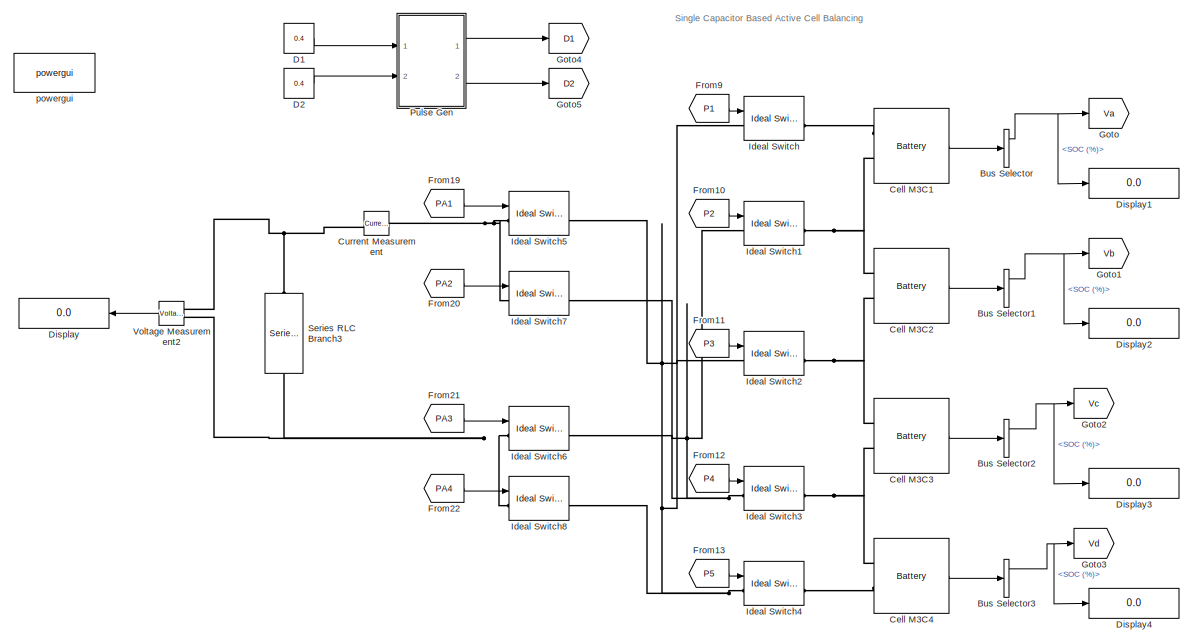
[diagram: root canvas - part 1/2, center side, full height]
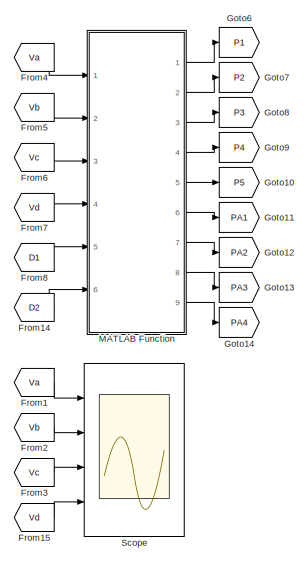
[diagram: root canvas - part 2/2, right side, full height]
MODEL slx_6ee19fbe0570
KIND model
CONFIG AbsTol = auto
CONFIG EnableMultiTasking = off
CONFIG FixedStep = auto
CONFIG MaxStep = auto
CONFIG MinStep = auto
CONFIG RelTol = 1e-3
CONFIG SampleTimeConstraint = Unconstrained
CONFIG SolverName = VariableStepAuto
CONFIG StartTime = 0.0
CONFIG StopTime = inf
BLOCK [BusSelector] Bus Selector
  OutputSignals = SOC (%),Voltage (V),Current (A)
  Ports = [1, 3]
BLOCK [BusSelector] Bus Selector1
  OutputSignals = SOC (%),Voltage (V),Current (A)
  Ports = [1, 3]
BLOCK [BusSelector] Bus Selector2
  OutputSignals = SOC (%),Voltage (V),Current (A)
  Ports = [1, 3]
BLOCK [BusSelector] Bus Selector3
  OutputSignals = SOC (%),Voltage (V),Current (A)
  Ports = [1, 3]
BLOCK [Reference] Cell M3C1  REF=spsBatteryLib/Battery
  NameLocation = top
  Ports = [0, 1, 0, 0, 0, 2]
  SourceBlock = spsBatteryLib/Battery
  SourceProductBaseCode = PS
  SourceType = Battery
BLOCK [Reference] Cell M3C2  REF=spsBatteryLib/Battery
  NameLocation = top
  Ports = [0, 1, 0, 0, 0, 2]
  SourceBlock = spsBatteryLib/Battery
  SourceProductBaseCode = PS
  SourceType = Battery
BLOCK [Reference] Cell M3C3  REF=spsBatteryLib/Battery
  NameLocation = top
  Ports = [0, 1, 0, 0, 0, 2]
  SourceBlock = spsBatteryLib/Battery
  SourceProductBaseCode = PS
  SourceType = Battery
BLOCK [Reference] Cell M3C4  REF=spsBatteryLib/Battery
  NameLocation = top
  Ports = [0, 1, 0, 0, 0, 2]
  SourceBlock = spsBatteryLib/Battery
  SourceProductBaseCode = PS
  SourceType = Battery
BLOCK [Reference] Current Measurement  REF=spsCurrentMeasurementLib/Current Measurement
  NameLocation = top
  Ports = [0, 1, 0, 0, 0, 1, 1]
  SourceBlock = spsCurrentMeasurementLib/Current Measurement
  SourceProductBaseCode = PS
  SourceType = Current Measurement
  UserDataPersistent = on
BLOCK [Constant] D1
  SampleTime = 1
  Value = 0.4
BLOCK [Constant] D2
  SampleTime = 1
  Value = 0.4
BLOCK [Display] Display
  Decimation = 1
  Ports = [1]
BLOCK [Display] Display1
  Decimation = 1
  Ports = [1]
BLOCK [Display] Display2
  Decimation = 1
  Ports = [1]
BLOCK [Display] Display3
  Decimation = 1
  Ports = [1]
BLOCK [Display] Display4
  Decimation = 1
  Ports = [1]
BLOCK [From] From1
  GotoTag = Va
BLOCK [From] From10
  GotoTag = P2
BLOCK [From] From11
  GotoTag = P3
BLOCK [From] From12
  GotoTag = P4
BLOCK [From] From13
  GotoTag = P5
BLOCK [From] From14
  GotoTag = D2
BLOCK [From] From15
  GotoTag = Vd
BLOCK [From] From19
  GotoTag = PA1
BLOCK [From] From2
  GotoTag = Vb
BLOCK [From] From20
  GotoTag = PA2
BLOCK [From] From21
  GotoTag = PA3
BLOCK [From] From22
  GotoTag = PA4
BLOCK [From] From3
  GotoTag = Vc
BLOCK [From] From4
  GotoTag = Va
BLOCK [From] From5
  GotoTag = Vb
BLOCK [From] From6
  GotoTag = Vc
BLOCK [From] From7
  GotoTag = Vd
BLOCK [From] From8
  GotoTag = D1
BLOCK [From] From9
  GotoTag = P1
BLOCK [Goto] Goto
  GotoTag = Va
BLOCK [Goto] Goto1
  GotoTag = Vb
BLOCK [Goto] Goto10
  GotoTag = P5
BLOCK [Goto] Goto11
  GotoTag = PA1
BLOCK [Goto] Goto12
  GotoTag = PA2
BLOCK [Goto] Goto13
  GotoTag = PA3
BLOCK [Goto] Goto14
  GotoTag = PA4
BLOCK [Goto] Goto2
  GotoTag = Vc
BLOCK [Goto] Goto3
  GotoTag = Vd
BLOCK [Goto] Goto4
  GotoTag = D1
BLOCK [Goto] Goto5
  GotoTag = D2
BLOCK [Goto] Goto6
  GotoTag = P1
BLOCK [Goto] Goto7
  GotoTag = P2
BLOCK [Goto] Goto8
  GotoTag = P3
BLOCK [Goto] Goto9
  GotoTag = P4
BLOCK [Reference] Ideal Switch  REF=spsIdealSwitchLib/Ideal Switch
  Ports = [1, 1, 0, 0, 0, 1, 1]
  SourceBlock = spsIdealSwitchLib/Ideal Switch
  SourceProductBaseCode = PS
  SourceType = Ideal Switch
BLOCK [Reference] Ideal Switch1  REF=spsIdealSwitchLib/Ideal Switch
  Ports = [1, 1, 0, 0, 0, 1, 1]
  SourceBlock = spsIdealSwitchLib/Ideal Switch
  SourceProductBaseCode = PS
  SourceType = Ideal Switch
BLOCK [Reference] Ideal Switch2  REF=spsIdealSwitchLib/Ideal Switch
  Ports = [1, 1, 0, 0, 0, 1, 1]
  SourceBlock = spsIdealSwitchLib/Ideal Switch
  SourceProductBaseCode = PS
  SourceType = Ideal Switch
BLOCK [Reference] Ideal Switch3  REF=spsIdealSwitchLib/Ideal Switch
  Ports = [1, 1, 0, 0, 0, 1, 1]
  SourceBlock = spsIdealSwitchLib/Ideal Switch
  SourceProductBaseCode = PS
  SourceType = Ideal Switch
BLOCK [Reference] Ideal Switch4  REF=spsIdealSwitchLib/Ideal Switch
  Ports = [1, 1, 0, 0, 0, 1, 1]
  SourceBlock = spsIdealSwitchLib/Ideal Switch
  SourceProductBaseCode = PS
  SourceType = Ideal Switch
BLOCK [Reference] Ideal Switch5  REF=spsIdealSwitchLib/Ideal Switch
  Ports = [1, 1, 0, 0, 0, 1, 1]
  SourceBlock = spsIdealSwitchLib/Ideal Switch
  SourceProductBaseCode = PS
  SourceType = Ideal Switch
BLOCK [Reference] Ideal Switch6  REF=spsIdealSwitchLib/Ideal Switch
  Ports = [1, 1, 0, 0, 0, 1, 1]
  SourceBlock = spsIdealSwitchLib/Ideal Switch
  SourceProductBaseCode = PS
  SourceType = Ideal Switch
BLOCK [Reference] Ideal Switch7  REF=spsIdealSwitchLib/Ideal Switch
  Ports = [1, 1, 0, 0, 0, 1, 1]
  SourceBlock = spsIdealSwitchLib/Ideal Switch
  SourceProductBaseCode = PS
  SourceType = Ideal Switch
BLOCK [Reference] Ideal Switch8  REF=spsIdealSwitchLib/Ideal Switch
  Ports = [1, 1, 0, 0, 0, 1, 1]
  SourceBlock = spsIdealSwitchLib/Ideal Switch
  SourceProductBaseCode = PS
  SourceType = Ideal Switch
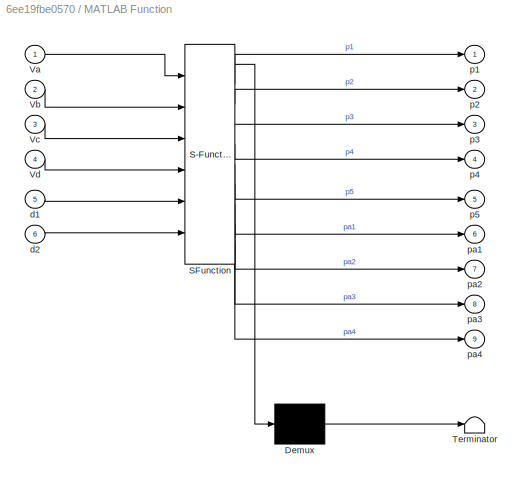
BLOCK [SubSystem] MATLAB Function
  ErrorFcn = Stateflow.Translate.translate
  PermitHierarchicalResolution = ExplicitOnly
  Ports = [6, 9]
  RequestExecContextInheritance = off
  SFBlockType = MATLAB Function
  TreatAsAtomicUnit = on
BLOCK [Demux] MATLAB Function/ Demux 
  Outputs = 1
  Ports = [1, 1]
BLOCK [S-Function] MATLAB Function/ SFunction 
  EnableBusSupport = on
  FunctionName = sf_sfun
  PortCounts = [6 10]
  Ports = [6, 10]
  SFcnIsStateOwnerBlock = off
  SFunctionDeploymentMode = off
  Tag = Stateflow S-Function 3
BLOCK [Terminator] MATLAB Function/ Terminator 
BLOCK [Inport] MATLAB Function/Va
BLOCK [Inport] MATLAB Function/Vb
  Port = 2
BLOCK [Inport] MATLAB Function/Vc
  Port = 3
BLOCK [Inport] MATLAB Function/Vd
  Port = 4
BLOCK [Inport] MATLAB Function/d1
  Port = 5
BLOCK [Inport] MATLAB Function/d2
  Port = 6
BLOCK [Outport] MATLAB Function/p1
  VectorParamsAs1DForOutWhenUnconnected = off
BLOCK [Outport] MATLAB Function/p2
  Port = 2
  VectorParamsAs1DForOutWhenUnconnected = off
BLOCK [Outport] MATLAB Function/p3
  Port = 3
  VectorParamsAs1DForOutWhenUnconnected = off
BLOCK [Outport] MATLAB Function/p4
  Port = 4
  VectorParamsAs1DForOutWhenUnconnected = off
BLOCK [Outport] MATLAB Function/p5
  Port = 5
  VectorParamsAs1DForOutWhenUnconnected = off
BLOCK [Outport] MATLAB Function/pa1
  Port = 6
  VectorParamsAs1DForOutWhenUnconnected = off
BLOCK [Outport] MATLAB Function/pa2
  Port = 7
  VectorParamsAs1DForOutWhenUnconnected = off
BLOCK [Outport] MATLAB Function/pa3
  Port = 8
  VectorParamsAs1DForOutWhenUnconnected = off
BLOCK [Outport] MATLAB Function/pa4
  Port = 9
  VectorParamsAs1DForOutWhenUnconnected = off
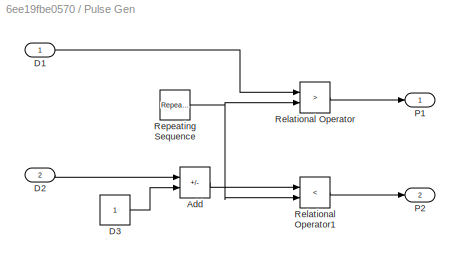
BLOCK [SubSystem] Pulse Gen
  Ports = [2, 2]
  RequestExecContextInheritance = off
BLOCK [Sum] Pulse Gen/Add
  IconShape = rectangular
  Inputs = -+
  Ports = [2, 1]
BLOCK [Inport] Pulse Gen/D1
BLOCK [Inport] Pulse Gen/D2
  Port = 2
BLOCK [Constant] Pulse Gen/D3
BLOCK [Outport] Pulse Gen/P1
  VectorParamsAs1DForOutWhenUnconnected = off
BLOCK [Outport] Pulse Gen/P2
  Port = 2
  VectorParamsAs1DForOutWhenUnconnected = off
BLOCK [RelationalOperator] Pulse Gen/Relational Operator
  InputSameDT = off
  Operator = >
  OutDataTypeStr = boolean
  Ports = [2, 1]
  RndMeth = Simplest
BLOCK [RelationalOperator] Pulse Gen/Relational Operator1
  InputSameDT = off
  Operator = <
  OutDataTypeStr = boolean
  Ports = [2, 1]
  RndMeth = Simplest
BLOCK [Reference] Pulse Gen/Repeating Sequence  REF=simulink/Sources/Repeating
Sequence
  Ports = [0, 1]
  SourceBlock = simulink/Sources/Repeating\nSequence
  SourceProductBaseCode = SL
  SourceType = Repeating table
BLOCK [Scope] Scope
  Floating = off
  NumInputPorts = 4
  Ports = [4]
  ScopeSpecificationString = Simulink.scopes.TimeScopeBlockCfg('CurrentConfiguration', extmgr.ConfigurationSet(extmgr.Configuration('Core','General UI',true),extmgr.Configuration('Core','Source UI',true),extmgr.Configuration('Sources','WiredSimulink',true,'DataLoggingSaveFormat','Array','DataLoggingLimitDataPoints',true,'DataLoggingDecimation','1'),extmgr.Configuration('Visuals','Time Domain',true,'SerializedDisplays',{struct...<+1721ch>
BLOCK [Reference] Series RLC Branch3  REF=spsSeriesRLCBranchLib/Series RLC Branch
  NameLocation = left
  Ports = [0, 0, 0, 0, 0, 1, 1]
  SourceBlock = spsSeriesRLCBranchLib/Series RLC Branch
  SourceProductBaseCode = PS
  SourceType = Series RLC Branch
BLOCK [Reference] Voltage Measurement2  REF=spsVoltageMeasurementLib/Voltage Measurement
  NameLocation = top
  Ports = [0, 1, 0, 0, 0, 2]
  SourceBlock = spsVoltageMeasurementLib/Voltage Measurement
  SourceProductBaseCode = PS
  SourceType = Voltage Measurement
  UserDataPersistent = on
BLOCK [Reference] powergui  REF=spspowerguiLib/powergui
  Ports = []
  Priority = 1
  SourceBlock = spspowerguiLib/powergui
  SourceProductBaseCode = PS
  SourceType = PSB option menu block
ANNOTATION (root): Single Capacitor Based Active Cell Balancing
NET Bus Selector1:1 -> Display2:1, Goto1:1
NET Bus Selector2:1 -> Display3:1, Goto2:1
NET Bus Selector3:1 -> Display4:1, Goto3:1
NET Bus Selector:1 -> Display1:1, Goto:1
LINE Cell M3C1:1 -> Bus Selector:1
LINE Cell M3C2:1 -> Bus Selector1:1
LINE Cell M3C3:1 -> Bus Selector2:1
LINE Cell M3C4:1 -> Bus Selector3:1
LINE D1:1 -> Pulse Gen:1
LINE D2:1 -> Pulse Gen:2
LINE From10:1 -> Ideal Switch1:1
LINE From11:1 -> Ideal Switch2:1
LINE From12:1 -> Ideal Switch3:1
LINE From13:1 -> Ideal Switch4:1
LINE From14:1 -> MATLAB Function:6
LINE From15:1 -> Scope:4
LINE From19:1 -> Ideal Switch5:1
LINE From1:1 -> Scope:1
LINE From20:1 -> Ideal Switch7:1
LINE From21:1 -> Ideal Switch6:1
LINE From22:1 -> Ideal Switch8:1
LINE From2:1 -> Scope:2
LINE From3:1 -> Scope:3
LINE From4:1 -> MATLAB Function:1
LINE From5:1 -> MATLAB Function:2
LINE From6:1 -> MATLAB Function:3
LINE From7:1 -> MATLAB Function:4
LINE From8:1 -> MATLAB Function:5
LINE From9:1 -> Ideal Switch:1
LINE MATLAB Function:1 -> Goto6:1
LINE MATLAB Function:2 -> Goto7:1
LINE MATLAB Function:3 -> Goto8:1
LINE MATLAB Function:4 -> Goto9:1
LINE MATLAB Function:5 -> Goto10:1
LINE MATLAB Function:6 -> Goto11:1
LINE MATLAB Function:7 -> Goto12:1
LINE MATLAB Function:8 -> Goto13:1
LINE MATLAB Function:9 -> Goto14:1
LINE Pulse Gen/Add:1 -> Pulse Gen/Relational Operator1:1
LINE Pulse Gen/D1:1 -> Pulse Gen/Relational Operator:1
LINE Pulse Gen/D2:1 -> Pulse Gen/Add:1
LINE Pulse Gen/D3:1 -> Pulse Gen/Add:2
LINE Pulse Gen/Relational Operator1:1 -> Pulse Gen/P2:1
LINE Pulse Gen/Relational Operator:1 -> Pulse Gen/P1:1
NET Pulse Gen/Repeating Sequence:1 -> Pulse Gen/Relational Operator1:2, Pulse Gen/Relational Operator:2
LINE Pulse Gen:1 -> Goto4:1
LINE Pulse Gen:2 -> Goto5:1
LINE Voltage Measurement2:1 -> Display:1
PLINE Cell M3C1:LConn1 -- Ideal Switch:RConn1
PNET net1: Cell M3C1:LConn2 -- Cell M3C2:LConn1 -- Ideal Switch1:RConn1
PNET net2: Cell M3C2:LConn2 -- Cell M3C3:LConn1 -- Ideal Switch2:RConn1
PNET net3: Cell M3C3:LConn2 -- Cell M3C4:LConn1 -- Ideal Switch3:RConn1
PLINE Cell M3C4:LConn2 -- Ideal Switch4:RConn1
PNET net4: Current Measurement:LConn1 -- Ideal Switch5:LConn1 -- Ideal Switch7:LConn1
PNET net5: Current Measurement:RConn1 -- Series RLC Branch3:LConn1 -- Voltage Measurement2:LConn1
PNET net6: Ideal Switch1:LConn1 -- Ideal Switch3:LConn1 -- Ideal Switch6:RConn1 -- Ideal Switch7:RConn1
PNET net7: Ideal Switch2:LConn1 -- Ideal Switch4:LConn1 -- Ideal Switch5:RConn1 -- Ideal Switch8:RConn1 -- Ideal Switch:LConn1
PNET net8: Ideal Switch6:LConn1 -- Ideal Switch8:LConn1 -- Series RLC Branch3:RConn1 -- Voltage Measurement2:LConn2
note: NET lines group one-source signal fan-out (src -> all destinations, sorted); 1:1 wires keep LINE; PNET lines group multi-terminal physical nets as a canonical sorted terminal list (undirected conserving connections); 2-terminal nets keep the pairwise PLINE form
CHART MATLAB Function states=1 transitions=1
  STATE_LABEL 'eML_blk_kernel()'
  STATE_LABEL 'SCRIPT:\nfunction [p1,p2,p3,p4,p5,pa1,pa2,pa3,pa4] = fcn(Va,Vb,Vc,Vd,d1,d2)\n\n[~,high]=max([Va,Vb,Vc,Vd]);\n[~,low]=min([Va,Vb,Vc,Vd]);\n\nif d1==1\n    switch high\n    \n        case 1    \n            p1=1;\n            p2=1;\n            p3=0;\n            p4=0;\n            p5=0;\n\n            pa1=1;\n            pa2=0;\n\n            pa3=1;\n            pa4=0;\n\n        case 2    \n            p1=0;\n           ...<+1965ch>'
CHART  states=0 transitions=0
